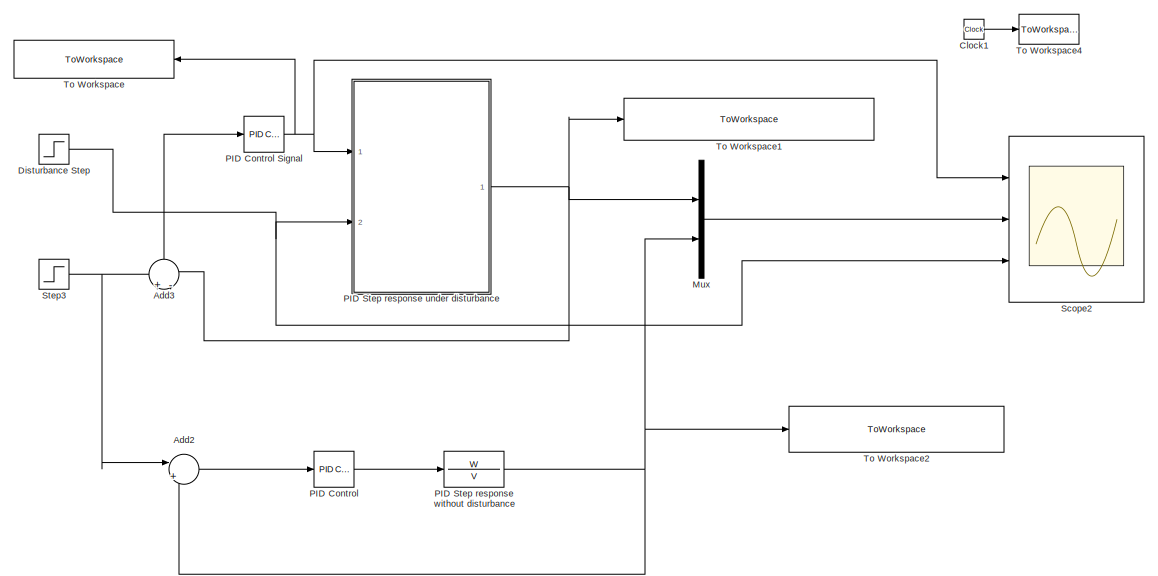
[diagram: root canvas - part 1/2, left side, full height]
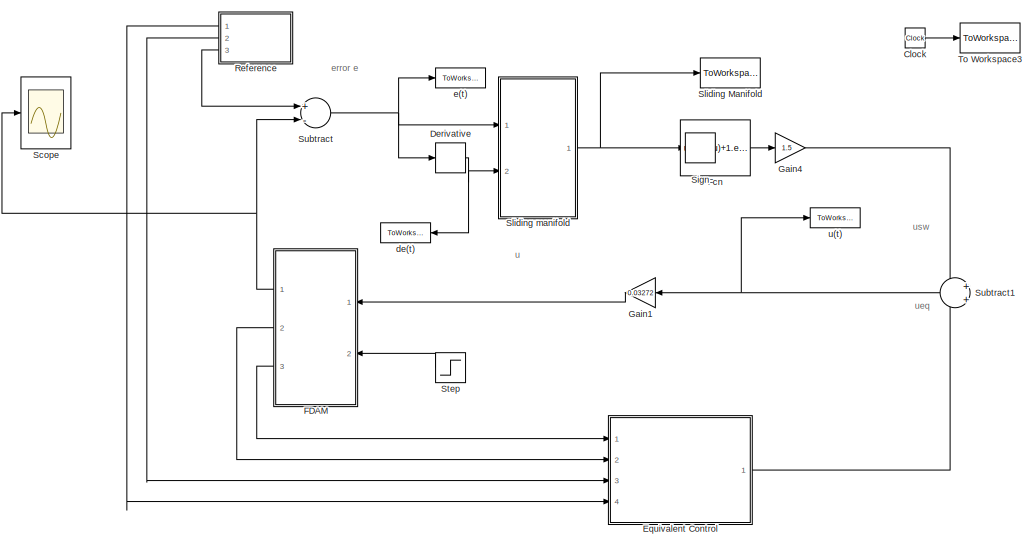
[diagram: root canvas - part 2/2, right side, full height]
MODEL slx_a2174733f967
KIND model
CONFIG AbsTol = auto
CONFIG EnableMultiTasking = on
CONFIG FixedStep = 1e-4
CONFIG MaxStep = auto
CONFIG MinStep = auto
CONFIG RelTol = 1e-3
CONFIG SampleTimeConstraint = Unconstrained
CONFIG Solver = ode3
CONFIG SolverName = ode3
CONFIG StartTime = 0.0
CONFIG StopTime = 15
BLOCK [Sum] Add2
  IconShape = round
  InputSameDT = off
  Inputs = |+-
  OutDataTypeStr = Inherit: Inherit via internal rule
  Ports = [2, 1]
  SaturateOnIntegerOverflow = off
BLOCK [Sum] Add3
  IconShape = round
  InputSameDT = off
  Inputs = +-
  OutDataTypeStr = Inherit: Inherit via internal rule
  Ports = [2, 1]
  SaturateOnIntegerOverflow = off
BLOCK [Clock] Clock
BLOCK [Clock] Clock1
BLOCK [Derivative] Derivative
BLOCK [Step] Disturbance Step
  After = 0.1
  SampleTime = 0
  Time = 5
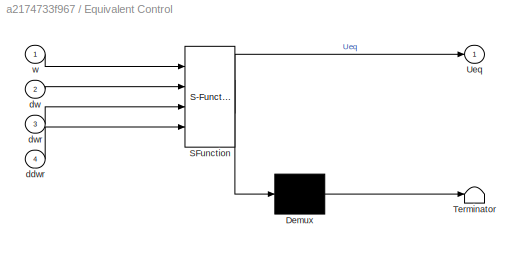
BLOCK [SubSystem] Equivalent Control
  ErrorFcn = Stateflow.Translate.translate
  PermitHierarchicalResolution = ExplicitOnly
  Ports = [4, 1]
  RequestExecContextInheritance = off
  SFBlockType = MATLAB Function
  TreatAsAtomicUnit = on
BLOCK [Demux] Equivalent Control/ Demux 
  Outputs = 1
  Ports = [1, 1]
BLOCK [S-Function] Equivalent Control/ SFunction 
  EnableBusSupport = on
  FunctionName = sf_sfun
  PortCounts = [4 2]
  Ports = [4, 2]
  SFcnIsStateOwnerBlock = off
  SFunctionDeploymentMode = off
  Tag = Stateflow S-Function fdam_pid_ve_smc_simulink 1
BLOCK [Terminator] Equivalent Control/ Terminator 
BLOCK [Outport] Equivalent Control/Ueq
  IconDisplay = Port number
BLOCK [Inport] Equivalent Control/ddwr
  IconDisplay = Port number
  Port = 4
BLOCK [Inport] Equivalent Control/dw
  IconDisplay = Port number
  Port = 2
BLOCK [Inport] Equivalent Control/dwr
  IconDisplay = Port number
  Port = 3
BLOCK [Inport] Equivalent Control/w
  IconDisplay = Port number
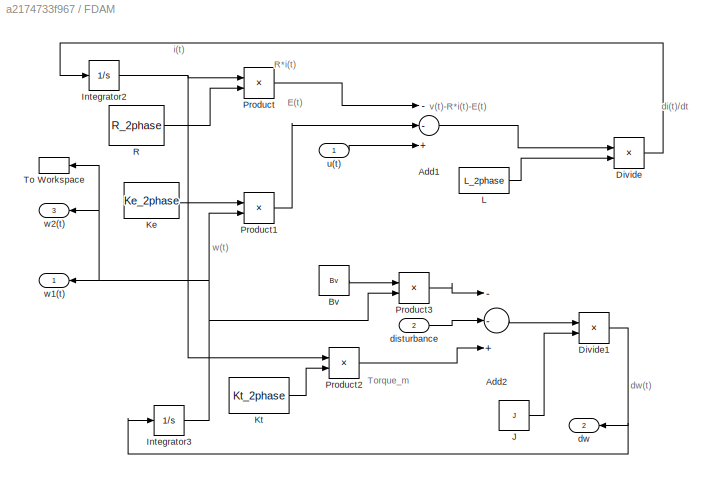
BLOCK [SubSystem] FDAM
  Ports = [2, 3]
  RequestExecContextInheritance = off
BLOCK [Sum] FDAM/Add1
  InputSameDT = off
  Inputs = --+
  OutDataTypeStr = Inherit: Inherit via internal rule
  Ports = [3, 1]
  SaturateOnIntegerOverflow = off
BLOCK [Sum] FDAM/Add2
  InputSameDT = off
  Inputs = --+
  OutDataTypeStr = Inherit: Inherit via internal rule
  Ports = [3, 1]
  SaturateOnIntegerOverflow = off
BLOCK [Constant] FDAM/Bv
  Value = Bv
BLOCK [Product] FDAM/Divide
  InputSameDT = off
  Inputs = */
  OutDataTypeStr = Inherit: Inherit via internal rule
  Ports = [2, 1]
  RndMeth = Floor
  SaturateOnIntegerOverflow = off
BLOCK [Product] FDAM/Divide1
  InputSameDT = off
  Inputs = */
  OutDataTypeStr = Inherit: Inherit via internal rule
  Ports = [2, 1]
  RndMeth = Floor
  SaturateOnIntegerOverflow = off
BLOCK [Integrator] FDAM/Integrator2
  Ports = [1, 1]
BLOCK [Integrator] FDAM/Integrator3
  Ports = [1, 1]
BLOCK [Constant] FDAM/J
  Value = J
BLOCK [Constant] FDAM/Ke
  Value = Ke_2phase
BLOCK [Constant] FDAM/Kt
  Value = Kt_2phase
BLOCK [Constant] FDAM/L
  Value = L_2phase
BLOCK [Product] FDAM/Product
  InputSameDT = off
  OutDataTypeStr = Inherit: Inherit via internal rule
  Ports = [2, 1]
  RndMeth = Floor
  SaturateOnIntegerOverflow = off
BLOCK [Product] FDAM/Product1
  InputSameDT = off
  OutDataTypeStr = Inherit: Inherit via internal rule
  Ports = [2, 1]
  RndMeth = Floor
  SaturateOnIntegerOverflow = off
BLOCK [Product] FDAM/Product2
  InputSameDT = off
  OutDataTypeStr = Inherit: Inherit via internal rule
  Ports = [2, 1]
  RndMeth = Floor
  SaturateOnIntegerOverflow = off
BLOCK [Product] FDAM/Product3
  InputSameDT = off
  OutDataTypeStr = Inherit: Inherit via internal rule
  Ports = [2, 1]
  RndMeth = Floor
  SaturateOnIntegerOverflow = off
BLOCK [Constant] FDAM/R
  Value = R_2phase
BLOCK [ToWorkspace] FDAM/To Workspace
  FixptAsFi = on
  MaxDataPoints = inf
  Ports = [1]
  SampleTime = -1
  VariableName = w
BLOCK [Inport] FDAM/disturbance
  IconDisplay = Port number
  Port = 2
BLOCK [Outport] FDAM/dw
  IconDisplay = Port number
  Port = 2
BLOCK [Inport] FDAM/u(t)
  IconDisplay = Port number
BLOCK [Outport] FDAM/w1(t)
  IconDisplay = Port number
BLOCK [Outport] FDAM/w2(t)
  IconDisplay = Port number
  Port = 3
BLOCK [Fcn] Fcn
  Expr = u/(abs(u)+1.e1000000)
BLOCK [Gain] Gain1
  Gain = 0.03272
  OutDataTypeStr = Inherit: Inherit via internal rule
  ParamDataTypeStr = Inherit: Inherit via internal rule
  SaturateOnIntegerOverflow = off
BLOCK [Gain] Gain4
  Gain = 1.5
  OutDataTypeStr = Inherit: Inherit via internal rule
  ParamDataTypeStr = Inherit: Inherit via internal rule
  SaturateOnIntegerOverflow = off
BLOCK [Mux] Mux
  DisplayOption = bar
  Inputs = 2
  Ports = [2, 1]
BLOCK [Reference] PID Control  REF=simulink/Continuous/PID Controller
  Ports = [1, 1]
  SourceBlock = simulink/Continuous/PID Controller
  SourceProductBaseCode = SL
  SourceProductName = Simulink
  SourceType = PID 1dof
BLOCK [Reference] PID Control Signal  REF=simulink/Continuous/PID Controller
  Ports = [1, 1]
  SourceBlock = simulink/Continuous/PID Controller
  SourceProductBaseCode = SL
  SourceProductName = Simulink
  SourceType = PID 1dof
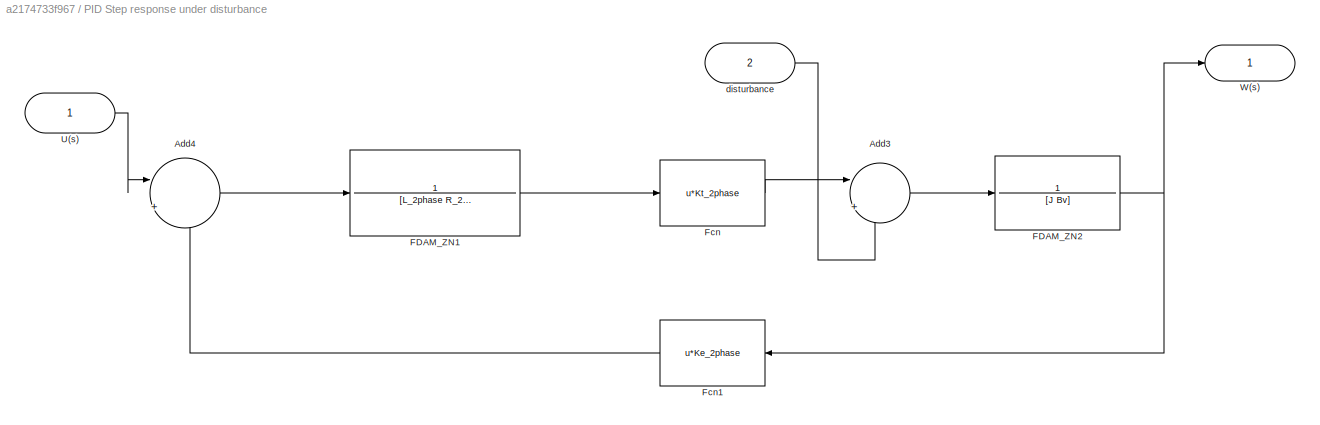
BLOCK [SubSystem] PID Step response under disturbance
  Ports = [2, 1]
  RequestExecContextInheritance = off
BLOCK [Sum] PID Step response under disturbance/Add3
  IconShape = round
  InputSameDT = off
  Inputs = |+-
  OutDataTypeStr = Inherit: Inherit via internal rule
  Ports = [2, 1]
  SaturateOnIntegerOverflow = off
BLOCK [Sum] PID Step response under disturbance/Add4
  IconShape = round
  InputSameDT = off
  Inputs = |+-
  OutDataTypeStr = Inherit: Inherit via internal rule
  Ports = [2, 1]
  SaturateOnIntegerOverflow = off
BLOCK [TransferFcn] PID Step response under disturbance/FDAM_ZN1
  Denominator = [L_2phase R_2phase]
  Numerator = 1
BLOCK [TransferFcn] PID Step response under disturbance/FDAM_ZN2
  Denominator = [J Bv]
  Numerator = 1
BLOCK [Fcn] PID Step response under disturbance/Fcn
  Expr = u*Kt_2phase
BLOCK [Fcn] PID Step response under disturbance/Fcn1
  Expr = u*Ke_2phase
BLOCK [Inport] PID Step response under disturbance/U(s)
  IconDisplay = Port number
BLOCK [Outport] PID Step response under disturbance/W(s)
  IconDisplay = Port number
BLOCK [Inport] PID Step response under disturbance/disturbance
  IconDisplay = Port number
  Port = 2
BLOCK [TransferFcn] PID Step response without disturbance
  Denominator = V
  Numerator = W
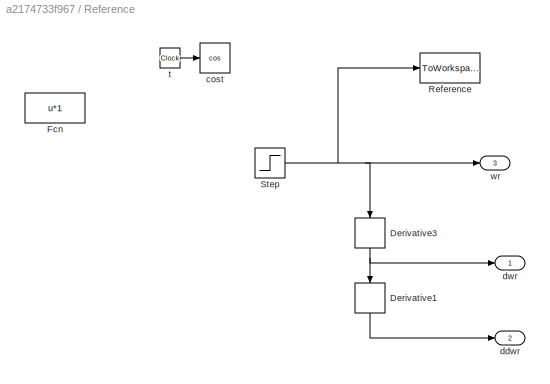
BLOCK [SubSystem] Reference
  Ports = [0, 3]
  RequestExecContextInheritance = off
  ShowPortLabels = SignalName
BLOCK [Derivative] Reference/Derivative1
BLOCK [Derivative] Reference/Derivative3
BLOCK [Fcn] Reference/Fcn
  Commented = on
  Expr = u*1
BLOCK [ToWorkspace] Reference/Reference
  FixptAsFi = on
  MaxDataPoints = inf
  Ports = [1]
  SampleTime = -1
  VariableName = wr
BLOCK [Step] Reference/Step
  SampleTime = 0
  Time = 0
BLOCK [Trigonometry] Reference/cost
  Commented = on
  Operator = cos
  Ports = [1, 1]
BLOCK [Outport] Reference/ddwr
  IconDisplay = Port number
  Port = 2
BLOCK [Outport] Reference/dwr
  IconDisplay = Port number
BLOCK [Clock] Reference/t
  Commented = on
BLOCK [Outport] Reference/wr
  IconDisplay = Port number
  Port = 3
BLOCK [Scope] Scope
  Floating = off
  NumInputPorts = 1
  Ports = [1]
  ScopeSpecificationString = Simulink.scopes.TimeScopeBlockCfg('CurrentConfiguration', extmgr.ConfigurationSet(extmgr.Configuration('Core','General UI',true),extmgr.Configuration('Core','Source UI',true),extmgr.Configuration('Sources','WiredSimulink',true),extmgr.Configuration('Visuals','Time Domain',true,'SerializedDisplays',{struct('MinYLimReal','-0.125','MaxYLimReal','1.125','YLabelReal','','MinYLimMag','0.00000','MaxYLimM...<+1340ch>
BLOCK [Scope] Scope2
  Floating = off
  NumInputPorts = 3
  Ports = [3]
  ScopeSpecificationString = Simulink.scopes.TimeScopeBlockCfg('CurrentConfiguration', extmgr.ConfigurationSet(extmgr.Configuration('Core','General UI',true,'FigureColor',[1 1 1]),extmgr.Configuration('Core','Source UI',true),extmgr.Configuration('Sources','WiredSimulink',true,'DataLoggingVariableName','ScopeData1'),extmgr.Configuration('Visuals','Time Domain',true,'SerializedDisplays',{struct('MinYLimReal','-379.2898','MaxYL...<+3567ch>
BLOCK [Signum] Sign
BLOCK [ToWorkspace] Sliding Manifold
  FixptAsFi = on
  MaxDataPoints = inf
  Ports = [1]
  SampleTime = -1
  VariableName = sliding
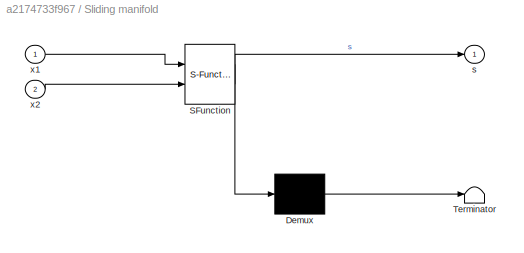
BLOCK [SubSystem] Sliding manifold
  ErrorFcn = Stateflow.Translate.translate
  PermitHierarchicalResolution = ExplicitOnly
  Ports = [2, 1]
  RequestExecContextInheritance = off
  SFBlockType = MATLAB Function
  TreatAsAtomicUnit = on
BLOCK [Demux] Sliding manifold/ Demux 
  Outputs = 1
  Ports = [1, 1]
BLOCK [S-Function] Sliding manifold/ SFunction 
  EnableBusSupport = on
  FunctionName = sf_sfun
  PortCounts = [2 2]
  Ports = [2, 2]
  SFcnIsStateOwnerBlock = off
  SFunctionDeploymentMode = off
  Tag = Stateflow S-Function fdam_pid_ve_smc_simulink 2
BLOCK [Terminator] Sliding manifold/ Terminator 
BLOCK [Outport] Sliding manifold/s
  IconDisplay = Port number
BLOCK [Inport] Sliding manifold/x1
  IconDisplay = Port number
BLOCK [Inport] Sliding manifold/x2
  IconDisplay = Port number
  Port = 2
BLOCK [Step] Step
  After = 0.01
  SampleTime = 0
  Time = 5
BLOCK [Step] Step3
  SampleTime = 0
  Time = 0
BLOCK [Sum] Subtract
  InputSameDT = off
  Inputs = +-
  OutDataTypeStr = Inherit: Inherit via internal rule
  Ports = [2, 1]
  SaturateOnIntegerOverflow = off
BLOCK [Sum] Subtract1
  IconShape = round
  InputSameDT = off
  OutDataTypeStr = Inherit: Inherit via internal rule
  Ports = [2, 1]
  SaturateOnIntegerOverflow = off
BLOCK [ToWorkspace] To Workspace
  FixptAsFi = on
  MaxDataPoints = inf
  Ports = [1]
  SampleTime = -1
  VariableName = pid_control_signal
BLOCK [ToWorkspace] To Workspace1
  FixptAsFi = on
  MaxDataPoints = inf
  Ports = [1]
  SampleTime = -1
  VariableName = pid_angular_velocity_with_disturbance
BLOCK [ToWorkspace] To Workspace2
  FixptAsFi = on
  MaxDataPoints = inf
  Ports = [1]
  SampleTime = -1
  VariableName = pid_angular_velocity_no_disturbance
BLOCK [ToWorkspace] To Workspace3
  FixptAsFi = on
  MaxDataPoints = inf
  Ports = [1]
  SampleTime = -1
  VariableName = t
BLOCK [ToWorkspace] To Workspace4
  FixptAsFi = on
  MaxDataPoints = inf
  Ports = [1]
  SampleTime = -1
  VariableName = t_pid
BLOCK [ToWorkspace] de(t)
  FixptAsFi = on
  MaxDataPoints = inf
  Ports = [1]
  SampleTime = -1
  VariableName = de
BLOCK [ToWorkspace] e(t)
  FixptAsFi = on
  MaxDataPoints = inf
  Ports = [1]
  SampleTime = -1
  VariableName = e
BLOCK [ToWorkspace] u(t)
  FixptAsFi = on
  MaxDataPoints = inf
  Ports = [1]
  SampleTime = -1
  VariableName = u
ANNOTATION (root): u
ANNOTATION (root): u eq
ANNOTATION (root): u sw
ANNOTATION (root): error e
ANNOTATION FDAM: dw(t)
ANNOTATION FDAM: E(t)
ANNOTATION FDAM: R*i(t)
ANNOTATION FDAM: Torque_m
ANNOTATION FDAM: v(t)-R*i(t)-E(t)
ANNOTATION FDAM: di(t)/dt
ANNOTATION FDAM: i(t)
ANNOTATION FDAM: w(t)
LINE Add2:1 -> PID Control:1
LINE Add3:1 -> PID Control Signal:1
LINE Clock1:1 -> To Workspace4:1
LINE Clock:1 -> To Workspace3:1
NET Derivative:1 -> Sliding manifold:2, de(t):1
NET Disturbance Step:1 -> PID Step response under disturbance:2, Scope2:3
LINE Equivalent Control:1 -> Subtract1:2
LINE FDAM/Add1:1 -> FDAM/Divide:1
LINE FDAM/Add2:1 -> FDAM/Divide1:1
LINE FDAM/Bv:1 -> FDAM/Product3:1
NET FDAM/Divide1:1 -> FDAM/Integrator3:1, FDAM/dw:1
LINE FDAM/Divide:1 -> FDAM/Integrator2:1
NET FDAM/Integrator2:1 -> FDAM/Product2:1, FDAM/Product:1
NET FDAM/Integrator3:1 -> FDAM/Product1:2, FDAM/Product3:2, FDAM/To Workspace:1, FDAM/w1(t):1, FDAM/w2(t):1
LINE FDAM/J:1 -> FDAM/Divide1:2
LINE FDAM/Ke:1 -> FDAM/Product1:1
LINE FDAM/Kt:1 -> FDAM/Product2:2
LINE FDAM/L:1 -> FDAM/Divide:2
LINE FDAM/Product1:1 -> FDAM/Add1:2
LINE FDAM/Product2:1 -> FDAM/Add2:3
LINE FDAM/Product3:1 -> FDAM/Add2:1
LINE FDAM/Product:1 -> FDAM/Add1:1
LINE FDAM/R:1 -> FDAM/Product:2
LINE FDAM/disturbance:1 -> FDAM/Add2:2
LINE FDAM/u(t):1 -> FDAM/Add1:3
NET FDAM:1 -> Scope:1, Subtract:2
LINE FDAM:2 -> Equivalent Control:2
LINE FDAM:3 -> Equivalent Control:1
LINE Gain1:1 -> FDAM:1
LINE Gain4:1 -> Subtract1:1
LINE Mux:1 -> Scope2:2
NET PID Control Signal:1 -> PID Step response under disturbance:1, Scope2:1, To Workspace:1
LINE PID Control:1 -> PID Step response without disturbance:1
LINE PID Step response under disturbance/Add3:1 -> PID Step response under disturbance/FDAM_ZN2:1
LINE PID Step response under disturbance/Add4:1 -> PID Step response under disturbance/FDAM_ZN1:1
LINE PID Step response under disturbance/FDAM_ZN1:1 -> PID Step response under disturbance/Fcn:1
NET PID Step response under disturbance/FDAM_ZN2:1 -> PID Step response under disturbance/Fcn1:1, PID Step response under disturbance/W(s):1
LINE PID Step response under disturbance/Fcn1:1 -> PID Step response under disturbance/Add4:2
LINE PID Step response under disturbance/Fcn:1 -> PID Step response under disturbance/Add3:1
LINE PID Step response under disturbance/U(s):1 -> PID Step response under disturbance/Add4:1
LINE PID Step response under disturbance/disturbance:1 -> PID Step response under disturbance/Add3:2
NET PID Step response under disturbance:1 -> Add3:2, Mux:1, To Workspace1:1
NET PID Step response without disturbance:1 -> Add2:2, Mux:2, To Workspace2:1
LINE Reference/Derivative1:1 -> Reference/ddwr:1
NET Reference/Derivative3:1 -> Reference/Derivative1:1, Reference/dwr:1
NET Reference/Step:1 -> Reference/Derivative3:1, Reference/Reference:1, Reference/wr:1
LINE Reference/t:1 -> Reference/cost:1
LINE Reference:1 -> Equivalent Control:4
LINE Reference:2 -> Equivalent Control:3
LINE Reference:3 -> Subtract:1
LINE Sign:1 -> Gain4:1
NET Sliding manifold:1 -> Sign:1, Sliding Manifold:1
NET Step3:1 -> Add2:1, Add3:1
LINE Step:1 -> FDAM:2
NET Subtract1:1 -> Gain1:1, u(t):1
NET Subtract:1 -> Derivative:1, Sliding manifold:1, e(t):1
note: NET lines group one-source signal fan-out (src -> all destinations, sorted); 1:1 wires keep LINE
CHART Equivalent Control states=1 transitions=1
  STATE_LABEL 'eML_blk_kernel()'
  STATE_LABEL 'SCRIPT:\nfunction Ueq = fcn(w,dw,dwr,ddwr)\n\nlambda=1.5; % here lambda is 1.5\n%Ueq=(M2+M3-lambda)*dw+(M2*M3+M4)*w+ddwr+lambda*dwr\nUeq =(0.78-lambda)*dw+3.49*w+ddwr+lambda*dwr; \nend'
CHART Sliding manifold states=1 transitions=1
  STATE_LABEL 'eML_blk_kernel()'
  STATE_LABEL 'SCRIPT:\nfunction s = fcn(x1,x2)\n%% Sliding manifold calculation\ns =x2+1.5*x1; % here lambda is 1.5\nend'
